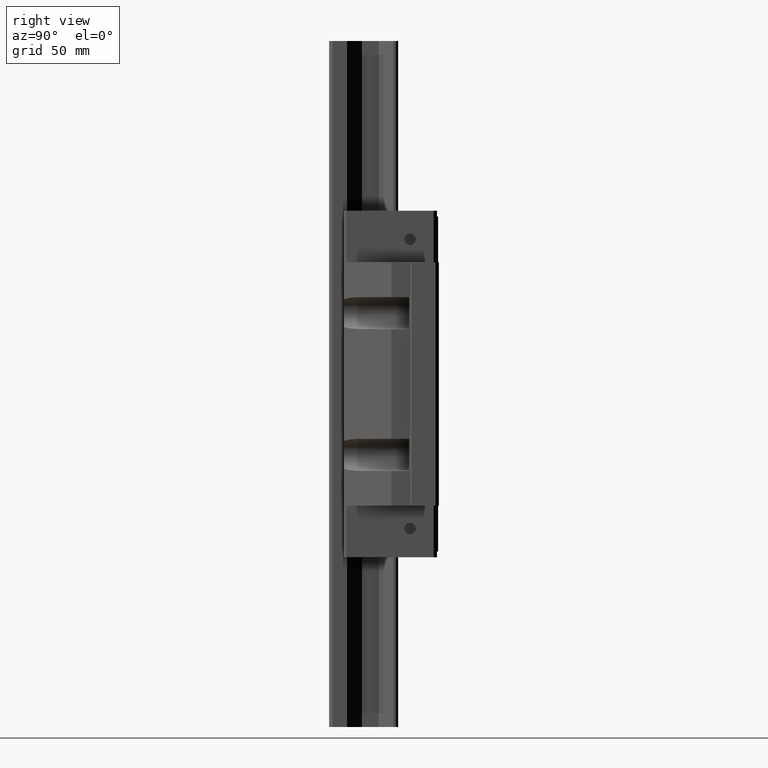
[diagram: clean part render]
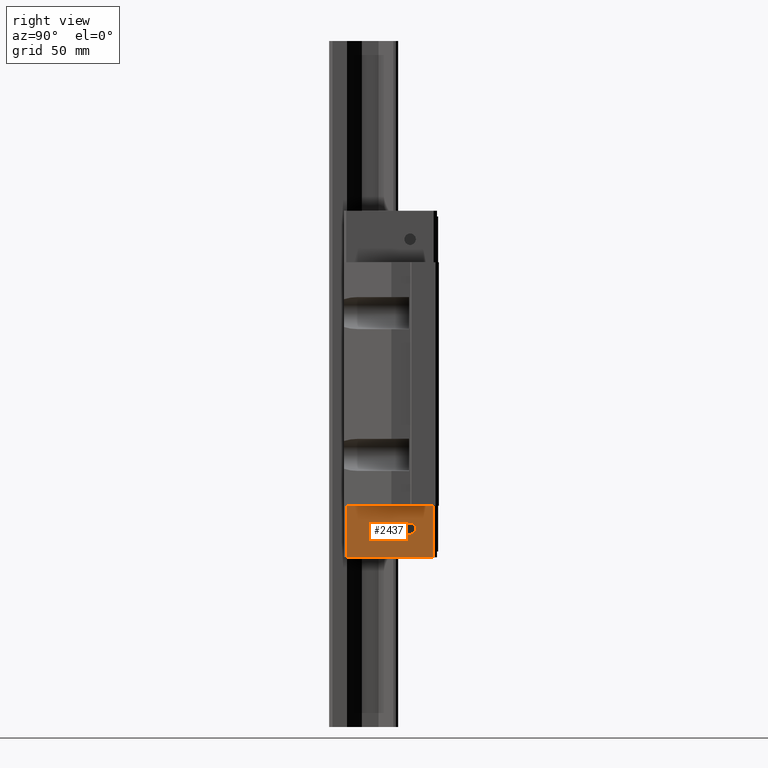
[diagram: same view with one face highlighted and labeled with its STEP entity id]
A machine part, right view. The second image highlights one B-rep face of the part: STEP entity #2437.
In plain terms, the highlighted planar face has unit normal (1, 0, 0).
Its self-contained STEP definition (entity closure, byte-faithful):
#17=DIRECTION('',(0.E0,-1.E0,0.E0));
#18=VECTOR('',#17,3.82E1);
#19=CARTESIAN_POINT('',(3.449999999540E1,4.569999999950E1,-5.325E1));
#20=LINE('',#19,#18);
#383=DIRECTION('',(0.E0,0.E0,-1.E0));
#384=VECTOR('',#383,2.25E1);
#385=CARTESIAN_POINT('',(3.449999999540E1,4.569999999950E1,-5.325E1));
#386=LINE('',#385,#384);
#387=DIRECTION('',(0.E0,-1.E0,0.E0));
#388=VECTOR('',#387,3.82E1);
#389=CARTESIAN_POINT('',(3.449999999540E1,4.569999999950E1,-7.575E1));
#390=LINE('',#389,#388);
#401=CARTESIAN_POINT('',(3.449999999540E1,3.539999999950E1,-6.325E1));
#402=DIRECTION('',(1.E0,0.E0,0.E0));
#403=DIRECTION('',(0.E0,-9.061321293302E-9,-1.E0));
#404=AXIS2_PLACEMENT_3D('',#401,#402,#403);
#406=CARTESIAN_POINT('',(3.449999999540E1,3.539999999950E1,-6.325E1));
#407=DIRECTION('',(1.E0,0.E0,0.E0));
#408=DIRECTION('',(0.E0,0.E0,1.E0));
#409=AXIS2_PLACEMENT_3D('',#406,#407,#408);
#1093=DIRECTION('',(0.E0,5.917242005024E-14,-1.E0));
#1094=VECTOR('',#1093,2.25E1);
#1095=CARTESIAN_POINT('',(3.449999999540E1,7.499999999499E0,-5.325E1));
#1096=LINE('',#1095,#1094);
#1499=CARTESIAN_POINT('',(3.449999999540E1,4.569999999950E1,-5.325E1));
#1500=VERTEX_POINT('',#1499);
#1501=CARTESIAN_POINT('',(3.449999999540E1,7.499999999499E0,-5.325E1));
#1502=VERTEX_POINT('',#1501);
#1665=CARTESIAN_POINT('',(3.449999999540E1,4.569999999950E1,-7.575E1));
#1666=VERTEX_POINT('',#1665);
#1705=CARTESIAN_POINT('',(3.449999999540E1,7.499999999500E0,-7.575E1));
#1706=VERTEX_POINT('',#1705);
#1864=CARTESIAN_POINT('',(3.449999999540E1,3.539999997685E1,-6.575E1));
#1865=CARTESIAN_POINT('',(3.449999999540E1,3.539999999950E1,-6.075E1));
#1866=VERTEX_POINT('',#1864);
#1867=VERTEX_POINT('',#1865);
#2417=CARTESIAN_POINT('',(3.449999999540E1,7.499999999500E0,-7.575E1));
#2418=DIRECTION('',(1.E0,0.E0,0.E0));
#2419=DIRECTION('',(0.E0,1.E0,0.E0));
#2420=AXIS2_PLACEMENT_3D('',#2417,#2418,#2419);
#2421=PLANE('',#2420);
#2422=ORIENTED_EDGE('',*,*,#1963,.F.);
#2424=ORIENTED_EDGE('',*,*,#2423,.T.);
#2426=ORIENTED_EDGE('',*,*,#2425,.T.);
#2428=ORIENTED_EDGE('',*,*,#2427,.F.);
#2429=EDGE_LOOP('',(#2422,#2424,#2426,#2428));
#2430=FACE_OUTER_BOUND('',#2429,.F.);
#2432=ORIENTED_EDGE('',*,*,#2431,.T.);
#2434=ORIENTED_EDGE('',*,*,#2433,.T.);
#2435=EDGE_LOOP('',(#2432,#2434));
#2436=FACE_BOUND('',#2435,.F.);
#2437=ADVANCED_FACE('',(#2430,#2436),#2421,.T.);
#405=CIRCLE('',#404,2.5E0);
#410=CIRCLE('',#409,2.5E0);
#1963=EDGE_CURVE('',#1500,#1502,#20,.T.);
#2423=EDGE_CURVE('',#1500,#1666,#386,.T.);
#2425=EDGE_CURVE('',#1666,#1706,#390,.T.);
#2427=EDGE_CURVE('',#1502,#1706,#1096,.T.);
#2431=EDGE_CURVE('',#1866,#1867,#405,.T.);
#2433=EDGE_CURVE('',#1867,#1866,#410,.T.);